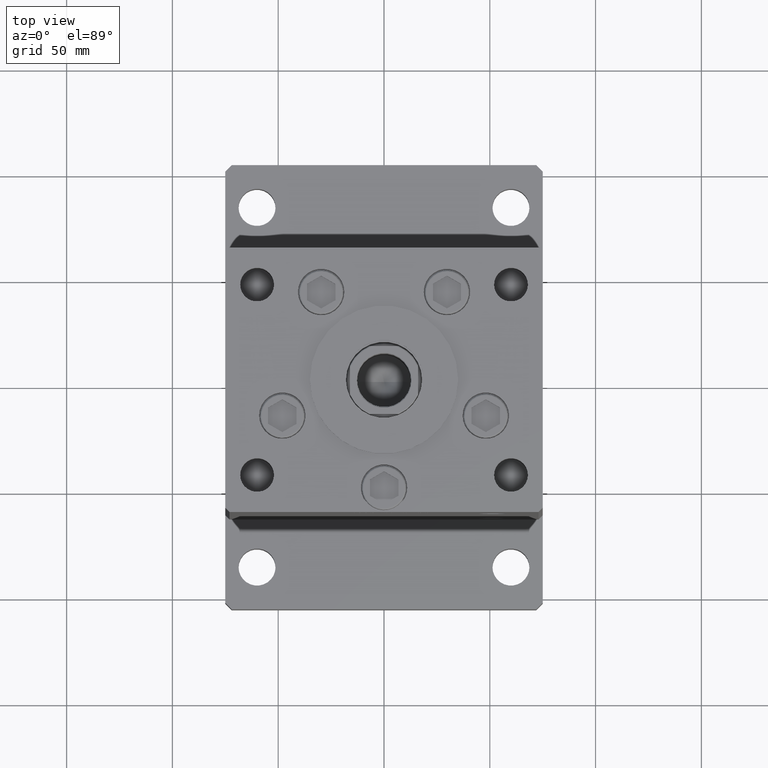
[diagram: clean part render]
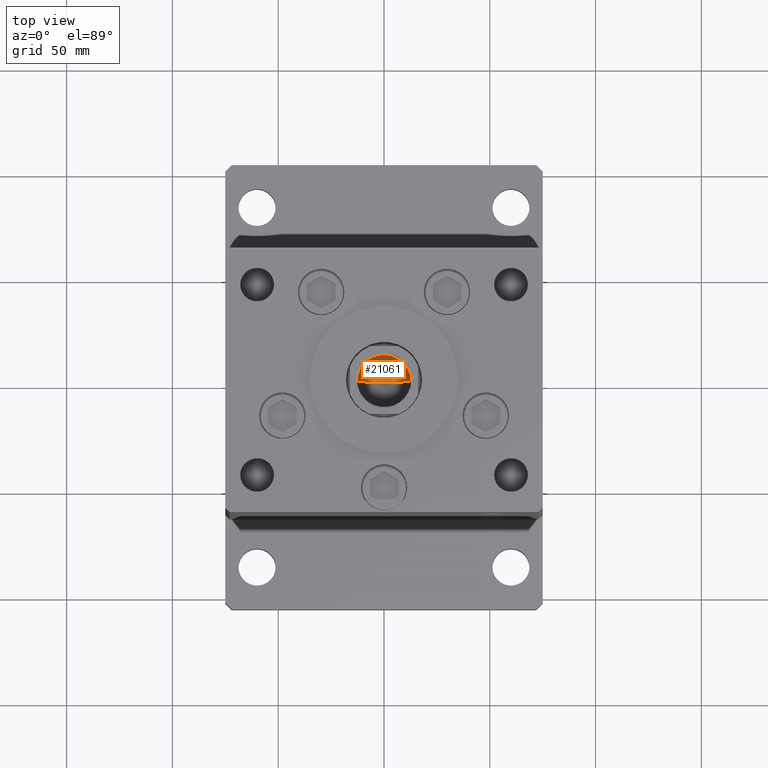
[diagram: same view with one face highlighted and labeled with its STEP entity id]
A machine part, top view. The second image highlights one B-rep face of the part: STEP entity #21061.
In plain terms, the highlighted conical surface has half-angle 59 deg.
Its self-contained STEP definition (entity closure, byte-faithful):
#680 = CARTESIAN_POINT ( 'NONE',  ( 12.74999999999999112, 0.000000000000000000, 113.0000000000000284 ) ) ;
#2404 = DIRECTION ( 'NONE',  ( 0.8571673007021117785, 0.000000000000000000, 0.5150380749100550437 ) ) ;
#3183 = FACE_OUTER_BOUND ( 'NONE', #18528, .T. ) ;
#3190 = CARTESIAN_POINT ( 'NONE',  ( -12.74999999999999112, 1.561424668912874125E-15, 113.0000000000000284 ) ) ;
#5216 = LINE ( 'NONE', #46445, #39746 ) ;
#5859 = VERTEX_POINT ( 'NONE', #14112 ) ;
#6982 = CONICAL_SURFACE ( 'NONE', #33856, 12.74999999999999112, 1.029744258676653423 ) ;
#7053 = EDGE_CURVE ( 'NONE', #5859, #22217, #44435, .T. ) ;
#11033 = DIRECTION ( 'NONE',  ( 1.000000000000000000, 0.000000000000000000, 0.000000000000000000 ) ) ;
#14112 = CARTESIAN_POINT ( 'NONE',  ( -1.307202896762960287E-14, 0.000000000000000000, 105.3390271073986355 ) ) ;
#15232 = EDGE_CURVE ( 'NONE', #5859, #33266, #5216, .T. ) ;
#18528 = EDGE_LOOP ( 'NONE', ( #39114, #19887, #44306 ) ) ;
#19887 = ORIENTED_EDGE ( 'NONE', *, *, #7053, .T. ) ;
#21061 = ADVANCED_FACE ( 'NONE', ( #3183 ), #6982, .F. ) ;
#22217 = VERTEX_POINT ( 'NONE', #680 ) ;
#23276 = CARTESIAN_POINT ( 'NONE',  ( 12.74999999999999112, 0.000000000000000000, 113.0000000000000284 ) ) ;
#27318 = DIRECTION ( 'NONE',  ( -0.000000000000000000, -0.000000000000000000, 1.000000000000000000 ) ) ;
#33266 = VERTEX_POINT ( 'NONE', #3190 ) ;
#33511 = CARTESIAN_POINT ( 'NONE',  ( 0.000000000000000000, 0.000000000000000000, 113.0000000000000284 ) ) ;
#33856 = AXIS2_PLACEMENT_3D ( 'NONE', #47943, #27318, #11033 ) ;
#34041 = DIRECTION ( 'NONE',  ( -0.000000000000000000, -0.000000000000000000, 1.000000000000000000 ) ) ;
#34298 = DIRECTION ( 'NONE',  ( 1.000000000000000000, 0.000000000000000000, 0.000000000000000000 ) ) ;
#37041 = VECTOR ( 'NONE', #2404, 1000.000000000000000 ) ;
#38894 = CIRCLE ( 'NONE', #43227, 12.74999999999999112 ) ;
#39114 = ORIENTED_EDGE ( 'NONE', *, *, #15232, .F. ) ;
#39746 = VECTOR ( 'NONE', #50249, 1000.000000000000000 ) ;
#43227 = AXIS2_PLACEMENT_3D ( 'NONE', #33511, #34041, #34298 ) ;
#44306 = ORIENTED_EDGE ( 'NONE', *, *, #45242, .T. ) ;
#44435 = LINE ( 'NONE', #23276, #37041 ) ;
#45242 = EDGE_CURVE ( 'NONE', #22217, #33266, #38894, .T. ) ;
#46445 = CARTESIAN_POINT ( 'NONE',  ( -12.74999999999999112, 1.561424668912874125E-15, 113.0000000000000284 ) ) ;
#47943 = CARTESIAN_POINT ( 'NONE',  ( 0.000000000000000000, 0.000000000000000000, 113.0000000000000284 ) ) ;
#50249 = DIRECTION ( 'NONE',  ( -0.8571673007021117785, 1.049727191138617956E-16, 0.5150380749100550437 ) ) ;